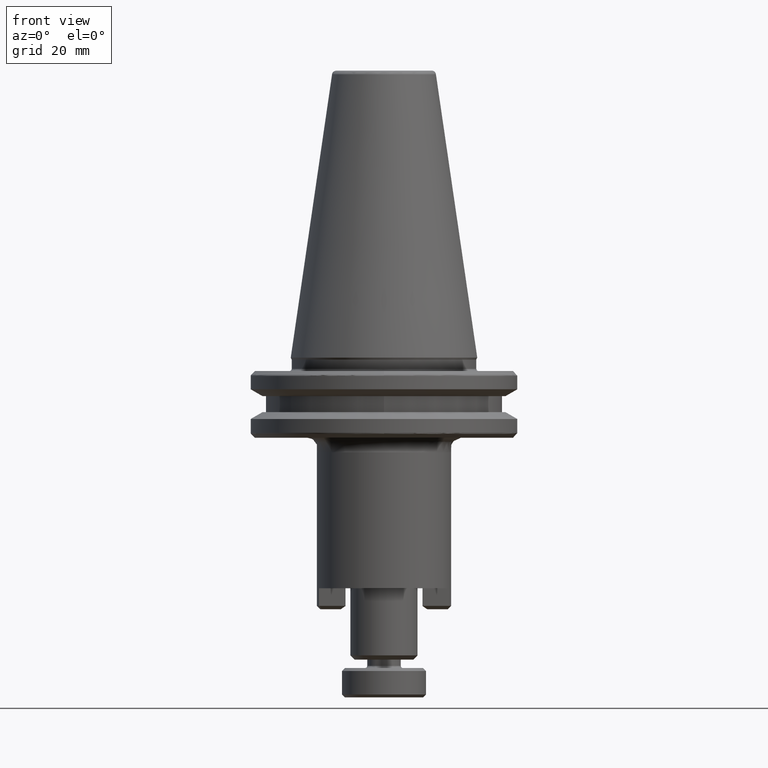
[diagram: clean part render]
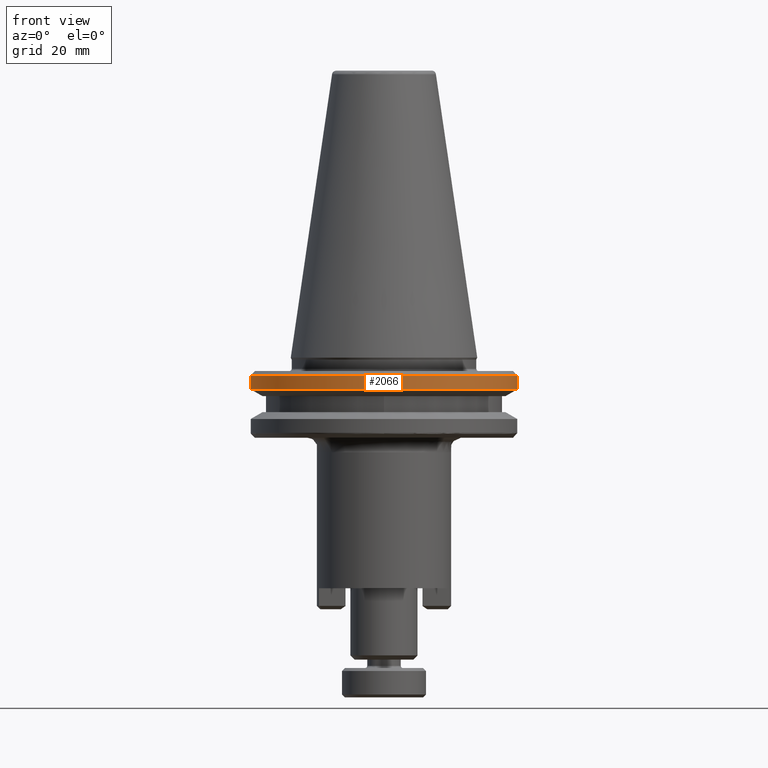
[diagram: same view with one face highlighted and labeled with its STEP entity id]
A machine part, front view. The second image highlights one B-rep face of the part: STEP entity #2066.
In plain terms, the highlighted cylindrical surface (partial cylindrical patch) has radius 31.775 mm, axis along (0, -0, 1).
Its self-contained STEP definition (entity closure, byte-faithful):
#1 = DIRECTION ( 'NONE',  ( -0.0000000000000000000, -0.0000000000000000000, -1.000000000000000000 ) ) ;
#4 = CARTESIAN_POINT ( 'NONE',  ( 106.8209000765735900, 85.49383738044632300, 76.85941666676781400 ) ) ;
#8 = ORIENTED_EDGE ( 'NONE', *, *, #2888, .T. ) ;
#10 = DIRECTION ( 'NONE',  ( -1.000000000000000000, 0.0000000000000000000, 0.0000000000000000000 ) ) ;
#51 = LINE ( 'NONE', #84, #2592 ) ;
#84 = CARTESIAN_POINT ( 'NONE',  ( 43.27090007657359600, 85.49383738044632300, 76.85941666676781400 ) ) ;
#91 = VERTEX_POINT ( 'NONE', #760 ) ;
#266 = ORIENTED_EDGE ( 'NONE', *, *, #2536, .F. ) ;
#375 = VECTOR ( 'NONE', #956, 1000.000000000000000 ) ;
#391 = CIRCLE ( 'NONE', #652, 31.77500000011695400 ) ;
#491 = VERTEX_POINT ( 'NONE', #2677 ) ;
#652 = AXIS2_PLACEMENT_3D ( 'NONE', #1008, #1154, #1035 ) ;
#681 = DIRECTION ( 'NONE',  ( -1.000000000000000000, 0.0000000000000000000, 0.0000000000000000000 ) ) ;
#696 = DIRECTION ( 'NONE',  ( -0.0000000000000000000, -0.0000000000000000000, -1.000000000000000000 ) ) ;
#702 = CARTESIAN_POINT ( 'NONE',  ( 75.04590007657358800, 85.49383738044632300, 80.05746084186391400 ) ) ;
#723 = VERTEX_POINT ( 'NONE', #1156 ) ;
#725 = DIRECTION ( 'NONE',  ( 0.0000000000000000000, -0.0000000000000000000, 1.000000000000000000 ) ) ;
#744 = AXIS2_PLACEMENT_3D ( 'NONE', #1345, #1, #10 ) ;
#760 = CARTESIAN_POINT ( 'NONE',  ( 106.8209000765677000, 85.49383738044632300, 80.05746084186391400 ) ) ;
#789 = EDGE_CURVE ( 'NONE', #91, #1316, #972, .T. ) ;
#820 = AXIS2_PLACEMENT_3D ( 'NONE', #3015, #3013, #3077 ) ;
#833 = DIRECTION ( 'NONE',  ( -0.0000000000000000000, 0.0000000000000000000, -1.000000000000000000 ) ) ;
#937 = CARTESIAN_POINT ( 'NONE',  ( 44.49024690367240000, 76.77588554661527100, 80.05746084186391400 ) ) ;
#956 = DIRECTION ( 'NONE',  ( 0.0000000000000000000, -0.0000000000000000000, 1.000000000000000000 ) ) ;
#972 = CIRCLE ( 'NONE', #1940, 31.77499999999410100 ) ;
#1008 = CARTESIAN_POINT ( 'NONE',  ( 75.04590007547761800, 85.49383738079616500, 80.05746084363949000 ) ) ;
#1035 = DIRECTION ( 'NONE',  ( 0.0000000000000000000, -1.000000000000000000, 0.0000000000000000000 ) ) ;
#1106 = FACE_OUTER_BOUND ( 'NONE', #2987, .T. ) ;
#1154 = DIRECTION ( 'NONE',  ( -1.044191750372384600E-019, 8.813453672576673100E-017, 1.000000000000000000 ) ) ;
#1156 = CARTESIAN_POINT ( 'NONE',  ( 43.27090007633305600, 85.49383738044632300, 76.85941666690668200 ) ) ;
#1157 = LINE ( 'NONE', #4, #375 ) ;
#1316 = VERTEX_POINT ( 'NONE', #2303 ) ;
#1345 = CARTESIAN_POINT ( 'NONE',  ( 75.04590007657358800, 85.49383738044632300, 80.05746084186391400 ) ) ;
#1372 = CYLINDRICAL_SURFACE ( 'NONE', #820, 31.77499999999999900 ) ;
#1400 = VERTEX_POINT ( 'NONE', #1965 ) ;
#1561 = VERTEX_POINT ( 'NONE', #937 ) ;
#1629 = AXIS2_PLACEMENT_3D ( 'NONE', #2426, #833, #2477 ) ;
#1641 = ORIENTED_EDGE ( 'NONE', *, *, #789, .T. ) ;
#1826 = ORIENTED_EDGE ( 'NONE', *, *, #1846, .F. ) ;
#1846 = EDGE_CURVE ( 'NONE', #491, #723, #2842, .T. ) ;
#1940 = AXIS2_PLACEMENT_3D ( 'NONE', #702, #696, #681 ) ;
#1965 = CARTESIAN_POINT ( 'NONE',  ( 43.27090007657949400, 85.49383738044632300, 80.05746084186391400 ) ) ;
#2066 = ADVANCED_FACE ( 'NONE', ( #1106 ), #1372, .T. ) ;
#2128 = EDGE_CURVE ( 'NONE', #1561, #1316, #391, .T. ) ;
#2303 = CARTESIAN_POINT ( 'NONE',  ( 105.6348117006066200, 76.89330770741328500, 80.05746084186391400 ) ) ;
#2425 = EDGE_CURVE ( 'NONE', #491, #91, #1157, .T. ) ;
#2426 = CARTESIAN_POINT ( 'NONE',  ( 75.04590007657358800, 85.49383738044632300, 76.85941666690668200 ) ) ;
#2477 = DIRECTION ( 'NONE',  ( 1.000000000000000000, 0.0000000000000000000, 0.0000000000000000000 ) ) ;
#2536 = EDGE_CURVE ( 'NONE', #723, #1400, #51, .T. ) ;
#2592 = VECTOR ( 'NONE', #725, 1000.000000000000000 ) ;
#2593 = ORIENTED_EDGE ( 'NONE', *, *, #2128, .F. ) ;
#2613 = ORIENTED_EDGE ( 'NONE', *, *, #2425, .T. ) ;
#2677 = CARTESIAN_POINT ( 'NONE',  ( 106.8209000768141400, 85.49383738044632300, 76.85941666690668200 ) ) ;
#2842 = CIRCLE ( 'NONE', #1629, 31.77500000024054200 ) ;
#2888 = EDGE_CURVE ( 'NONE', #1561, #1400, #3178, .T. ) ;
#2987 = EDGE_LOOP ( 'NONE', ( #266, #1826, #2613, #1641, #2593, #8 ) ) ;
#3013 = DIRECTION ( 'NONE',  ( 0.0000000000000000000, -0.0000000000000000000, 1.000000000000000000 ) ) ;
#3015 = CARTESIAN_POINT ( 'NONE',  ( 75.04590007657358800, 85.49383738044632300, 76.85941666676781400 ) ) ;
#3077 = DIRECTION ( 'NONE',  ( 1.000000000000000000, 0.0000000000000000000, 0.0000000000000000000 ) ) ;
#3178 = CIRCLE ( 'NONE', #744, 31.77499999999410100 ) ;